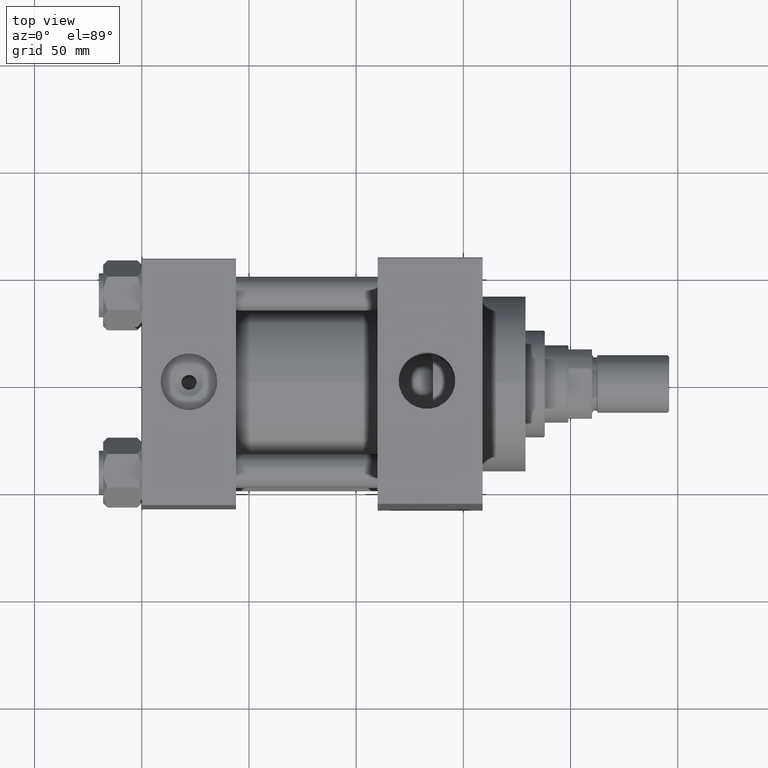
[diagram: clean part render]
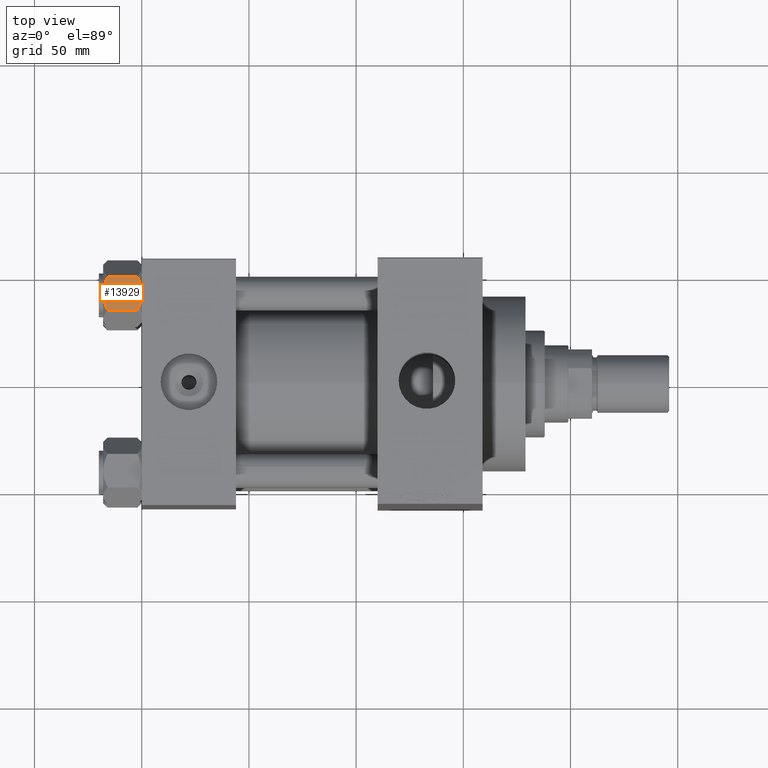
[diagram: same view with one face highlighted and labeled with its STEP entity id]
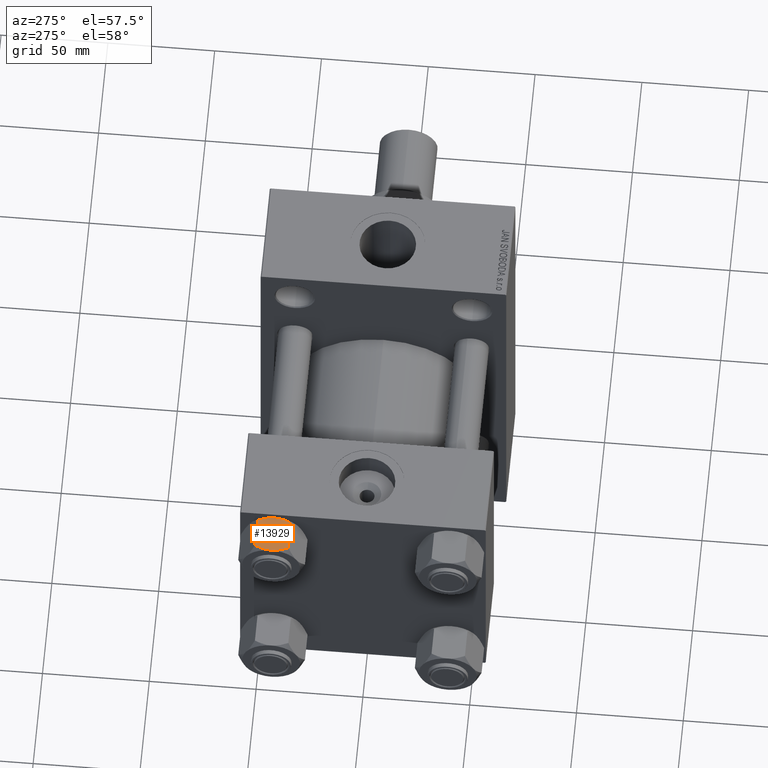
[diagram: same view with one face highlighted and labeled with its STEP entity id]
A machine part, top view. The second image highlights one B-rep face of the part: STEP entity #13929.
A second angle (auxiliary view) of the same face is appended — the face is thin or edge-on in the first view.
In plain terms, the highlighted planar face has unit normal (0, -0, -1).
Its self-contained STEP definition (entity closure, byte-faithful):
#104 = AXIS2_PLACEMENT_3D ( 'NONE', #4508, #7929, #22999 ) ;
#251 = ORIENTED_EDGE ( 'NONE', *, *, #19240, .F. ) ;
#356 = PLANE ( 'NONE',  #104 ) ;
#415 = ORIENTED_EDGE ( 'NONE', *, *, #47872, .T. ) ;
#1464 = CARTESIAN_POINT ( 'NONE',  ( -1.663410456966171180, -13.52731680711293549, -17.90195050864300796 ) ) ;
#1477 = VERTEX_POINT ( 'NONE', #38112 ) ;
#1519 = CARTESIAN_POINT ( 'NONE',  ( 6.427364677720476926, -13.52731680711293549, -16.56149306284486755 ) ) ;
#1667 = CARTESIAN_POINT ( 'NONE',  ( 4.557734399832416905, -13.52731680711293016, -0.7341470174115138914 ) ) ;
#1938 = CARTESIAN_POINT ( 'NONE',  ( -0.6693083573771178019, -13.52731680711293727, -17.98750666918892449 ) ) ;
#2117 = EDGE_CURVE ( 'NONE', #7422, #41282, #29435, .T. ) ;
#3262 = CARTESIAN_POINT ( 'NONE',  ( 7.810000000000002274, -13.52731680711293372, -1.999999999999998224 ) ) ;
#3677 = LINE ( 'NONE', #32924, #20511 ) ;
#4109 = DIRECTION ( 'NONE',  ( -0.000000000000000000, -0.000000000000000000, 1.000000000000000000 ) ) ;
#4508 = CARTESIAN_POINT ( 'NONE',  ( 7.810000000000002274, -13.52731680711293372, -18.00000000000000000 ) ) ;
#4847 = CARTESIAN_POINT ( 'NONE',  ( 7.622943475354652776, -13.52731680711293372, -2.000000000000000000 ) ) ;
#5164 = DIRECTION ( 'NONE',  ( -1.000000000000000000, -2.221156819432531199E-16, 0.000000000000000000 ) ) ;
#5597 = CARTESIAN_POINT ( 'NONE',  ( -6.422751913021825132, -13.52731680711293905, -16.56349088907410305 ) ) ;
#7159 = DIRECTION ( 'NONE',  ( 1.000000000000000000, 2.221156819432531199E-16, -0.000000000000000000 ) ) ;
#7422 = VERTEX_POINT ( 'NONE', #34780 ) ;
#7929 = DIRECTION ( 'NONE',  ( -2.221156819432531199E-16, 1.000000000000000000, 0.000000000000000000 ) ) ;
#8037 = ORIENTED_EDGE ( 'NONE', *, *, #25256, .F. ) ;
#8793 = CARTESIAN_POINT ( 'NONE',  ( 3.004629197474319246E-15, -13.52731680711293727, -18.00000000000000000 ) ) ;
#8835 = LINE ( 'NONE', #26839, #15897 ) ;
#9029 = CARTESIAN_POINT ( 'NONE',  ( -1.333889873825130579, -13.52731680711293549, -17.93843358996560866 ) ) ;
#9181 = CARTESIAN_POINT ( 'NONE',  ( -7.622943475354647447, -13.52731680711293727, -2.000000000000000000 ) ) ;
#9270 = VECTOR ( 'NONE', #33766, 1000.000000000000000 ) ;
#9465 = CARTESIAN_POINT ( 'NONE',  ( 5.184073258379408244, -13.52731680711293372, -0.9481437906500832513 ) ) ;
#10701 = VECTOR ( 'NONE', #7159, 1000.000000000000000 ) ;
#10711 = ORIENTED_EDGE ( 'NONE', *, *, #45423, .F. ) ;
#11284 = LINE ( 'NONE', #3262, #10701 ) ;
#11359 = VERTEX_POINT ( 'NONE', #31126 ) ;
#11696 = VERTEX_POINT ( 'NONE', #34471 ) ;
#12108 = CARTESIAN_POINT ( 'NONE',  ( 7.810000000000002274, -13.52731680711293372, -16.00000000000000000 ) ) ;
#12157 = CARTESIAN_POINT ( 'NONE',  ( 3.004629197474319246E-15, -13.52731680711293727, 0.000000000000000000 ) ) ;
#12421 = VECTOR ( 'NONE', #4109, 1000.000000000000000 ) ;
#12724 = CARTESIAN_POINT ( 'NONE',  ( 3.004629197474319246E-15, -13.52731680711293727, -18.00000000000000000 ) ) ;
#13018 = VERTEX_POINT ( 'NONE', #13295 ) ;
#13295 = CARTESIAN_POINT ( 'NONE',  ( 3.004629197474319246E-15, -13.52731680711293727, 0.000000000000000000 ) ) ;
#13530 = CARTESIAN_POINT ( 'NONE',  ( -5.189513245496330640, -13.52731680711293905, -0.9501108431732574466 ) ) ;
#13929 = ADVANCED_FACE ( 'NONE', ( #37608 ), #356, .F. ) ;
#15897 = VECTOR ( 'NONE', #5164, 1000.000000000000000 ) ;
#16120 = CARTESIAN_POINT ( 'NONE',  ( 2.638177715023113379, -13.52731680711293549, -17.79984593233011481 ) ) ;
#16536 = CARTESIAN_POINT ( 'NONE',  ( -3.287826776903149728, -13.52731680711293727, -17.61954155462466076 ) ) ;
#16770 = CARTESIAN_POINT ( 'NONE',  ( -7.030203932307581560, -13.52731680711293727, -16.29099812210860065 ) ) ;
#18218 = CARTESIAN_POINT ( 'NONE',  ( 7.810000000000002274, -13.52731680711293372, -18.00000000000000000 ) ) ;
#19240 = EDGE_CURVE ( 'NONE', #1477, #7422, #3677, .T. ) ;
#19621 = ORIENTED_EDGE ( 'NONE', *, *, #2117, .F. ) ;
#19712 = CARTESIAN_POINT ( 'NONE',  ( -2.644243758052987836, -13.52731680711293549, -17.75917188019760218 ) ) ;
#19725 = VERTEX_POINT ( 'NONE', #21526 ) ;
#19952 = CARTESIAN_POINT ( 'NONE',  ( -7.622943475354647447, -13.52731680711293727, -16.00000000000000000 ) ) ;
#20160 = CARTESIAN_POINT ( 'NONE',  ( 1.663410456966175843, -13.52731680711293372, -0.09804949135698878826 ) ) ;
#20511 = VECTOR ( 'NONE', #37516, 1000.000000000000000 ) ;
#20518 = EDGE_CURVE ( 'NONE', #19725, #1477, #8835, .T. ) ;
#20655 = CARTESIAN_POINT ( 'NONE',  ( -7.622943475354647447, -13.52731680711293727, -2.000000000000000000 ) ) ;
#20819 = CARTESIAN_POINT ( 'NONE',  ( -6.427364677720470709, -13.52731680711293727, -1.438506937155139109 ) ) ;
#20866 = B_SPLINE_CURVE_WITH_KNOTS ( 'NONE', 3,
 ( #8793, #24327, #1938, #9029, #1464, #19712, #16536, #27994, #45524, #5597, #16770, #19952 ),
 .UNSPECIFIED., .F., .F.,
 ( 4, 2, 2, 2, 2, 4 ),
 ( 0.02774433486126545376, 0.02873404020403549225, 0.02972374554680553074, 0.03170315623234560426, 0.03368256691788568125, 0.03566197760342575823 ),
 .UNSPECIFIED. ) ;
#21526 = CARTESIAN_POINT ( 'NONE',  ( -7.622943475354647447, -13.52731680711293727, -16.00000000000000000 ) ) ;
#22999 = DIRECTION ( 'NONE',  ( -1.000000000000000000, -2.221156819432531199E-16, 0.000000000000000000 ) ) ;
#23183 = CARTESIAN_POINT ( 'NONE',  ( 5.189513245496335969, -13.52731680711293194, -17.04988915682674033 ) ) ;
#23647 = ORIENTED_EDGE ( 'NONE', *, *, #40286, .F. ) ;
#23670 = CARTESIAN_POINT ( 'NONE',  ( 7.030888348548065103, -13.52731680711293194, -16.29066211644969897 ) ) ;
#24005 = CARTESIAN_POINT ( 'NONE',  ( -4.553769687922305742, -13.52731680711294082, -0.7327291995145158721 ) ) ;
#24327 = CARTESIAN_POINT ( 'NONE',  ( -0.3330234424833808937, -13.52731680711293372, -18.00000000000000711 ) ) ;
#24488 = CARTESIAN_POINT ( 'NONE',  ( -2.638177715023105385, -13.52731680711294082, -0.2001540676698838062 ) ) ;
#24767 = CARTESIAN_POINT ( 'NONE',  ( 7.810000000000002274, -13.52731680711293372, -16.00000000000000000 ) ) ;
#25256 = EDGE_CURVE ( 'NONE', #13018, #11359, #45563, .T. ) ;
#26839 = CARTESIAN_POINT ( 'NONE',  ( 7.810000000000002274, -13.52731680711293372, -16.00000000000000000 ) ) ;
#27994 = CARTESIAN_POINT ( 'NONE',  ( -4.557734399832409800, -13.52731680711293905, -17.26585298258849122 ) ) ;
#28313 = VERTEX_POINT ( 'NONE', #24767 ) ;
#28893 = B_SPLINE_CURVE_WITH_KNOTS ( 'NONE', 3,
 ( #9181, #32046, #20819, #13530, #24005, #24488, #35455, #42980 ),
 .UNSPECIFIED., .F., .F.,
 ( 4, 2, 2, 4 ),
 ( 0.01980594295952729095, 0.02179054093496183425, 0.02377513891039637756, 0.02774433486126546416 ),
 .UNSPECIFIED. ) ;
#28970 = CARTESIAN_POINT ( 'NONE',  ( 7.810000000000002274, -13.52731680711293372, -1.999999999999998224 ) ) ;
#29435 = LINE ( 'NONE', #28970, #44343 ) ;
#30264 = CARTESIAN_POINT ( 'NONE',  ( 7.622943475354652776, -13.52731680711293372, -16.00000000000000000 ) ) ;
#31126 = CARTESIAN_POINT ( 'NONE',  ( 7.622943475354652776, -13.52731680711293372, -2.000000000000000000 ) ) ;
#31146 = CARTESIAN_POINT ( 'NONE',  ( 2.644243758052992277, -13.52731680711293372, -0.2408281198023969893 ) ) ;
#32046 = CARTESIAN_POINT ( 'NONE',  ( -7.030888348548060662, -13.52731680711294082, -1.709337883550297699 ) ) ;
#32924 = CARTESIAN_POINT ( 'NONE',  ( -7.809999999999999609, -13.52731680711293727, -18.00000000000000000 ) ) ;
#33069 = ORIENTED_EDGE ( 'NONE', *, *, #42026, .F. ) ;
#33503 = ORIENTED_EDGE ( 'NONE', *, *, #43056, .F. ) ;
#33766 = DIRECTION ( 'NONE',  ( -1.000000000000000000, -2.221156819432531199E-16, 0.000000000000000000 ) ) ;
#34250 = EDGE_LOOP ( 'NONE', ( #46410, #415, #33503, #8037, #23647, #19621, #251, #40362, #33069, #10711 ) ) ;
#34471 = CARTESIAN_POINT ( 'NONE',  ( 7.810000000000002274, -13.52731680711293372, -1.999999999999998224 ) ) ;
#34550 = CARTESIAN_POINT ( 'NONE',  ( 1.333889873825135686, -13.52731680711293549, -0.06156641003439144999 ) ) ;
#34640 = CARTESIAN_POINT ( 'NONE',  ( 7.622943475354652776, -13.52731680711293372, -16.00000000000000000 ) ) ;
#34780 = CARTESIAN_POINT ( 'NONE',  ( -7.809999999999999609, -13.52731680711293727, -1.999999999999998224 ) ) ;
#34788 = CARTESIAN_POINT ( 'NONE',  ( 0.3330234424833860007, -13.52731680711293727, 1.736982230502816853E-15 ) ) ;
#35455 = CARTESIAN_POINT ( 'NONE',  ( -1.335584685993413956, -13.52731680711294082, 1.666960840196463265E-15 ) ) ;
#35496 = CARTESIAN_POINT ( 'NONE',  ( 0.6693083573771232420, -13.52731680711293372, -0.01249333081107902900 ) ) ;
#36737 = DIRECTION ( 'NONE',  ( 1.000000000000000000, 2.221156819432531199E-16, -0.000000000000000000 ) ) ;
#37458 = LINE ( 'NONE', #18218, #12421 ) ;
#37516 = DIRECTION ( 'NONE',  ( -0.000000000000000000, -0.000000000000000000, 1.000000000000000000 ) ) ;
#37608 = FACE_OUTER_BOUND ( 'NONE', #34250, .T. ) ;
#38034 = CARTESIAN_POINT ( 'NONE',  ( 4.553769687922309295, -13.52731680711293194, -17.26727080048548046 ) ) ;
#38112 = CARTESIAN_POINT ( 'NONE',  ( -7.809999999999999609, -13.52731680711293727, -16.00000000000000000 ) ) ;
#38520 = CARTESIAN_POINT ( 'NONE',  ( 1.335584685993418619, -13.52731680711293372, -18.00000000000000355 ) ) ;
#38666 = EDGE_CURVE ( 'NONE', #28313, #45457, #45443, .T. ) ;
#38908 = CARTESIAN_POINT ( 'NONE',  ( 6.422751913021828685, -13.52731680711293549, -1.436509110925896948 ) ) ;
#39601 = CARTESIAN_POINT ( 'NONE',  ( 3.004629197474319246E-15, -13.52731680711293727, -18.00000000000000000 ) ) ;
#40286 = EDGE_CURVE ( 'NONE', #41282, #13018, #28893, .T. ) ;
#40362 = ORIENTED_EDGE ( 'NONE', *, *, #20518, .F. ) ;
#41282 = VERTEX_POINT ( 'NONE', #20655 ) ;
#42026 = EDGE_CURVE ( 'NONE', #42649, #19725, #20866, .T. ) ;
#42318 = CARTESIAN_POINT ( 'NONE',  ( 7.030203932307590442, -13.52731680711293727, -1.709001877891394017 ) ) ;
#42649 = VERTEX_POINT ( 'NONE', #39601 ) ;
#42980 = CARTESIAN_POINT ( 'NONE',  ( 3.004629197474319246E-15, -13.52731680711293727, 0.000000000000000000 ) ) ;
#43056 = EDGE_CURVE ( 'NONE', #11359, #11696, #11284, .T. ) ;
#44343 = VECTOR ( 'NONE', #36737, 1000.000000000000000 ) ;
#44450 = B_SPLINE_CURVE_WITH_KNOTS ( 'NONE', 3,
 ( #34640, #23670, #1519, #23183, #38034, #16120, #38520, #12724 ),
 .UNSPECIFIED., .F., .F.,
 ( 4, 2, 2, 4 ),
 ( 0.01980594295952729095, 0.02179054093496183078, 0.02377513891039637062, 0.02774433486126545376 ),
 .UNSPECIFIED. ) ;
#45423 = EDGE_CURVE ( 'NONE', #45457, #42649, #44450, .T. ) ;
#45443 = LINE ( 'NONE', #12108, #9270 ) ;
#45457 = VERTEX_POINT ( 'NONE', #30264 ) ;
#45524 = CARTESIAN_POINT ( 'NONE',  ( -5.184073258379402027, -13.52731680711293905, -17.05185620934992130 ) ) ;
#45563 = B_SPLINE_CURVE_WITH_KNOTS ( 'NONE', 3,
 ( #12157, #34788, #35496, #34550, #20160, #31146, #45969, #1667, #9465, #38908, #42318, #4847 ),
 .UNSPECIFIED., .F., .F.,
 ( 4, 2, 2, 2, 2, 4 ),
 ( 0.02774433486126546416, 0.02873404020403550266, 0.02972374554680554115, 0.03170315623234561814, 0.03368256691788569512, 0.03566197760342577211 ),
 .UNSPECIFIED. ) ;
#45969 = CARTESIAN_POINT ( 'NONE',  ( 3.287826776903156833, -13.52731680711293194, -0.3804584453753362960 ) ) ;
#46410 = ORIENTED_EDGE ( 'NONE', *, *, #38666, .F. ) ;
#47872 = EDGE_CURVE ( 'NONE', #28313, #11696, #37458, .T. ) ;